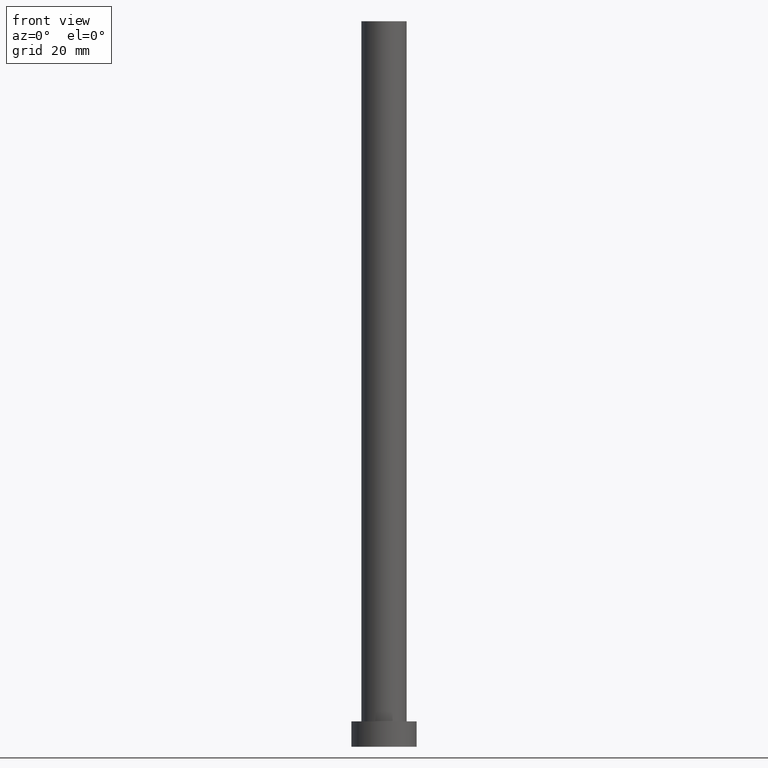
[diagram: clean part render]
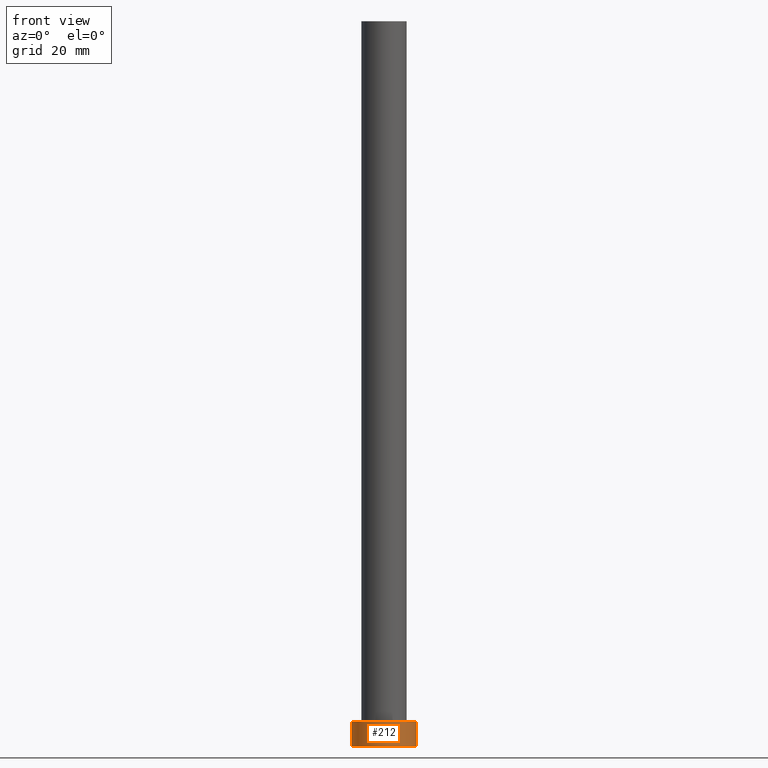
[diagram: same view with one face highlighted and labeled with its STEP entity id]
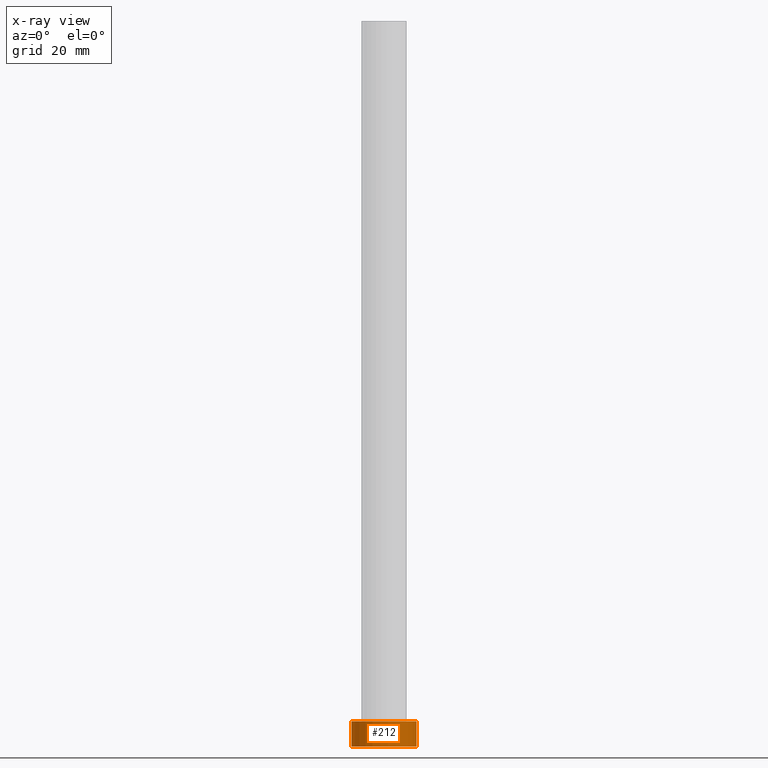
[diagram: x-ray of the same camera — body ghosted, the highlighted face saturated]
A machine part, front view. The second image highlights one B-rep face of the part: STEP entity #212.
The next image is the same camera in x-ray: the body ghosted, the highlighted face saturated — about 0% of this face is hidden behind the body in this view.
In plain terms, the highlighted cylindrical surface (edge-blend (fillet) strip) has radius 9 mm, axis along (-0, -0, -1).
Its self-contained STEP definition (entity closure, byte-faithful):
#9 = CIRCLE ( 'NONE', #234, 9.000000000000000000 ) ;
#19 = CARTESIAN_POINT ( 'NONE',  ( 9.000000000000000000, 1.102182119232617714E-15, 0.000000000000000000 ) ) ;
#20 = CARTESIAN_POINT ( 'NONE',  ( 0.000000000000000000, 0.000000000000000000, 0.000000000000000000 ) ) ;
#39 = DIRECTION ( 'NONE',  ( 1.000000000000000000, 0.000000000000000000, 0.000000000000000000 ) ) ;
#43 = AXIS2_PLACEMENT_3D ( 'NONE', #236, #238, #114 ) ;
#45 = CARTESIAN_POINT ( 'NONE',  ( 0.000000000000000000, 0.000000000000000000, 7.000000000000000000 ) ) ;
#50 = FACE_OUTER_BOUND ( 'NONE', #239, .T. ) ;
#57 = ORIENTED_EDGE ( 'NONE', *, *, #74, .T. ) ;
#59 = EDGE_CURVE ( 'NONE', #156, #162, #103, .T. ) ;
#74 = EDGE_CURVE ( 'NONE', #79, #165, #209, .T. ) ;
#79 = VERTEX_POINT ( 'NONE', #248 ) ;
#97 = CARTESIAN_POINT ( 'NONE',  ( -9.000000000000000000, 0.000000000000000000, 7.000000000000000000 ) ) ;
#103 = LINE ( 'NONE', #192, #154 ) ;
#110 = DIRECTION ( 'NONE',  ( -0.000000000000000000, -0.000000000000000000, -1.000000000000000000 ) ) ;
#114 = DIRECTION ( 'NONE',  ( 1.000000000000000000, 0.000000000000000000, 0.000000000000000000 ) ) ;
#116 = DIRECTION ( 'NONE',  ( -0.000000000000000000, -0.000000000000000000, -1.000000000000000000 ) ) ;
#125 = DIRECTION ( 'NONE',  ( 0.000000000000000000, 0.000000000000000000, 1.000000000000000000 ) ) ;
#127 = ORIENTED_EDGE ( 'NONE', *, *, #161, .T. ) ;
#128 = CARTESIAN_POINT ( 'NONE',  ( 9.000000000000000000, 1.102182119232617714E-15, 7.000000000000000000 ) ) ;
#130 = DIRECTION ( 'NONE',  ( -0.000000000000000000, -0.000000000000000000, -1.000000000000000000 ) ) ;
#140 = CARTESIAN_POINT ( 'NONE',  ( -9.000000000000000000, 0.000000000000000000, 0.000000000000000000 ) ) ;
#141 = ORIENTED_EDGE ( 'NONE', *, *, #59, .F. ) ;
#153 = AXIS2_PLACEMENT_3D ( 'NONE', #45, #130, #185 ) ;
#154 = VECTOR ( 'NONE', #110, 1000.000000000000000 ) ;
#156 = VERTEX_POINT ( 'NONE', #128 ) ;
#159 = CIRCLE ( 'NONE', #43, 9.000000000000000000 ) ;
#161 = EDGE_CURVE ( 'NONE', #165, #162, #9, .T. ) ;
#162 = VERTEX_POINT ( 'NONE', #19 ) ;
#165 = VERTEX_POINT ( 'NONE', #140 ) ;
#185 = DIRECTION ( 'NONE',  ( -1.000000000000000000, 0.000000000000000000, 0.000000000000000000 ) ) ;
#192 = CARTESIAN_POINT ( 'NONE',  ( 9.000000000000000000, 1.102182119232617714E-15, 7.000000000000000000 ) ) ;
#195 = ORIENTED_EDGE ( 'NONE', *, *, #215, .F. ) ;
#200 = VECTOR ( 'NONE', #116, 1000.000000000000000 ) ;
#209 = LINE ( 'NONE', #97, #200 ) ;
#212 = ADVANCED_FACE ( 'NONE', ( #50 ), #245, .T. ) ;
#215 = EDGE_CURVE ( 'NONE', #79, #156, #159, .T. ) ;
#234 = AXIS2_PLACEMENT_3D ( 'NONE', #20, #125, #39 ) ;
#236 = CARTESIAN_POINT ( 'NONE',  ( 0.000000000000000000, 0.000000000000000000, 7.000000000000000000 ) ) ;
#238 = DIRECTION ( 'NONE',  ( 0.000000000000000000, 0.000000000000000000, 1.000000000000000000 ) ) ;
#239 = EDGE_LOOP ( 'NONE', ( #141, #195, #57, #127 ) ) ;
#245 = CYLINDRICAL_SURFACE ( 'NONE', #153, 9.000000000000000000 ) ;
#248 = CARTESIAN_POINT ( 'NONE',  ( -9.000000000000000000, 0.000000000000000000, 7.000000000000000000 ) ) ;